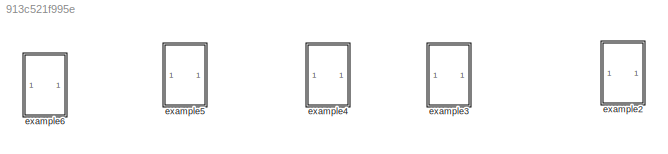
MODEL slx_913c521f995e
KIND model
CONFIG AbsTol = auto
CONFIG EnableMultiTasking = off
CONFIG FixedStep = auto
CONFIG MaxStep = auto
CONFIG MinStep = auto
CONFIG RelTol = 1e-3
CONFIG SampleTimeConstraint = Unconstrained
CONFIG SolverName = VariableStepAuto
CONFIG StartTime = 0.0
CONFIG StopTime = 10.0
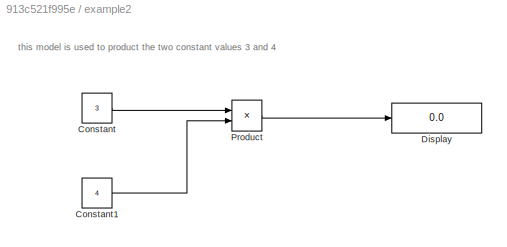
BLOCK [SubSystem] example2
BLOCK [Constant] example2/Constant
  Value = 3
BLOCK [Constant] example2/Constant1
  Value = 4
BLOCK [Display] example2/Display
  Decimation = 1
BLOCK [Product] example2/Product
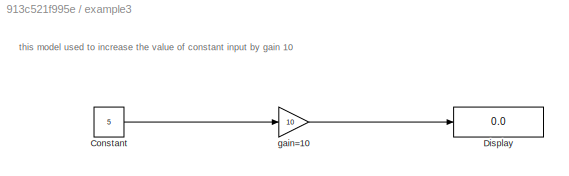
BLOCK [SubSystem] example3
BLOCK [Constant] example3/Constant
  Value = 5
BLOCK [Display] example3/Display
  Decimation = 1
BLOCK [Gain] example3/gain=10
  Gain = 10
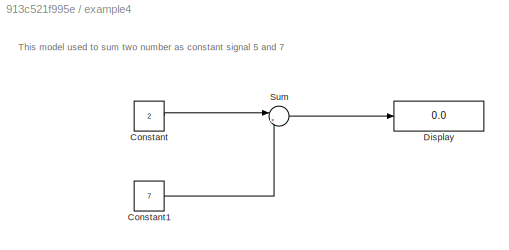
BLOCK [SubSystem] example4
BLOCK [Constant] example4/Constant
  Value = 2
BLOCK [Constant] example4/Constant1
  Value = 7
BLOCK [Display] example4/Display
  Decimation = 1
BLOCK [Sum] example4/Sum
  Inputs = |++
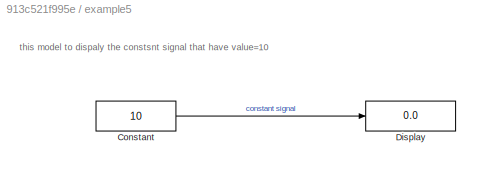
BLOCK [SubSystem] example5
BLOCK [Constant] example5/Constant
  Value = 10
BLOCK [Display] example5/Display
  Decimation = 1
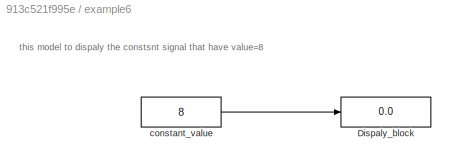
BLOCK [SubSystem] example6
BLOCK [Display] example6/Dispaly_block
  Decimation = 1
BLOCK [Constant] example6/constant_value
  Value = 8
ANNOTATION example2: this model is used to product the two constant values 3 and 4
ANNOTATION example3: this model used to increase the value of constant input by gain 10
ANNOTATION example4: This model used to sum two number as constant signal 5 and 7
ANNOTATION example5: this model to dispaly the constsnt signal that have value=10
ANNOTATION example6: this model to dispaly the constsnt signal that have value=8
LINE example2/Constant1:1 -> example2/Product:2
LINE example2/Constant:1 -> example2/Product:1
LINE example2/Product:1 -> example2/Display:1
LINE example3/Constant:1 -> example3/gain=10:1
LINE example3/gain=10:1 -> example3/Display:1
LINE example4/Constant1:1 -> example4/Sum:2
LINE example4/Constant:1 -> example4/Sum:1
LINE example4/Sum:1 -> example4/Display:1
LINE example5/Constant:1 -> example5/Display:1
LINE example6/constant_value:1 -> example6/Dispaly_block:1
